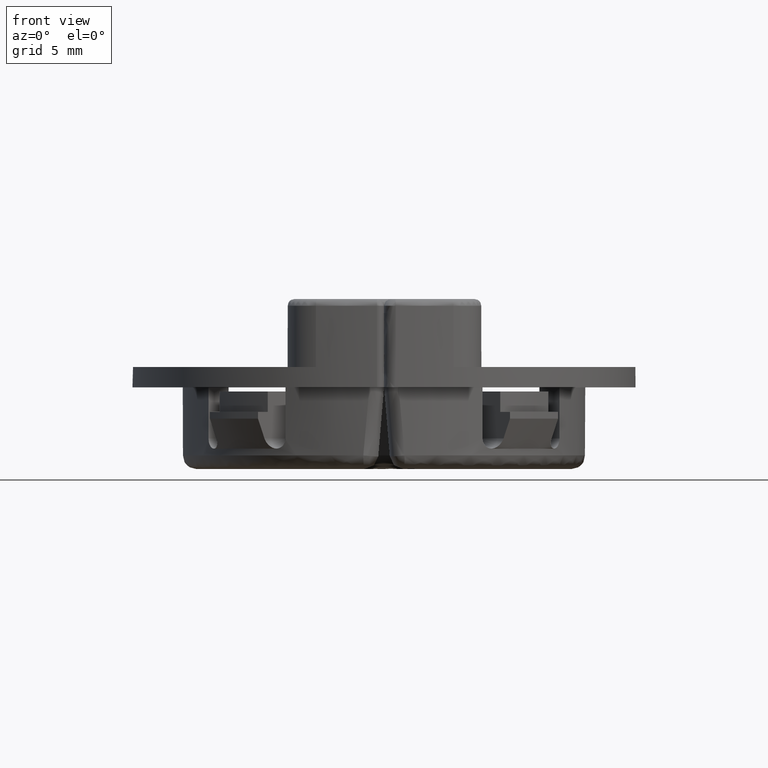
[diagram: clean part render]
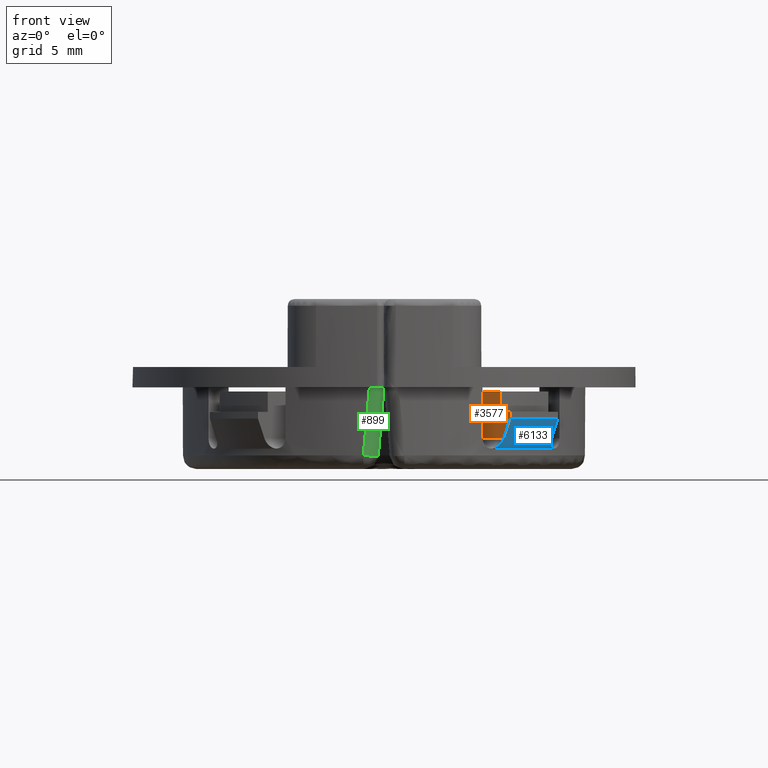
[diagram: same view with three faces highlighted in distinct colors, each labeled with its STEP entity id]
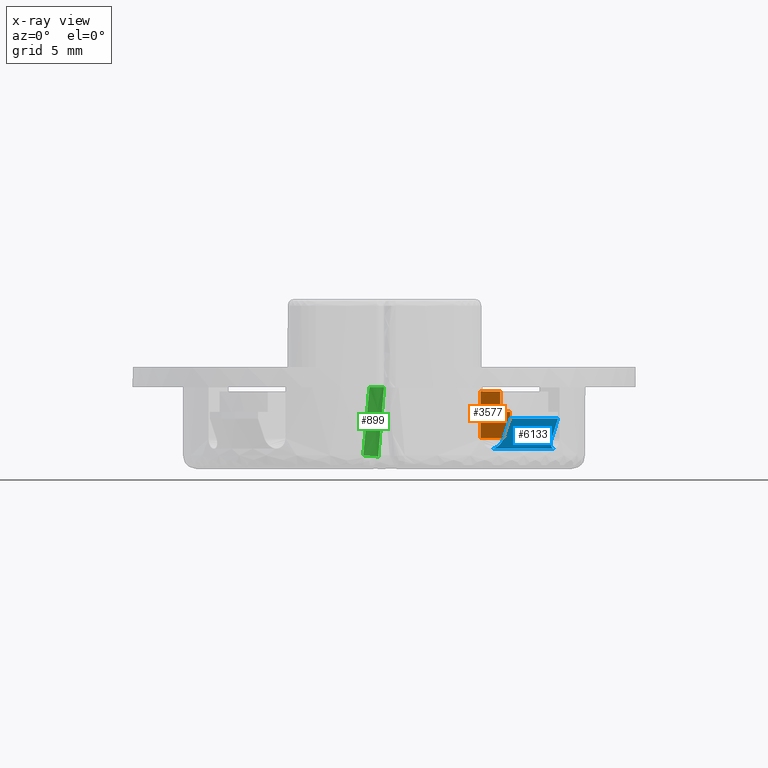
[diagram: x-ray of the same camera — body ghosted, the three highlighted faces saturated]
A machine part, front view with three faces highlighted in distinct colors.
The next image is the same camera in x-ray (body ghosted, the three faces saturated) — at least one of them is partly hidden behind the body in this view.
Their STEP definitions:

[orange] entity #3577 — the highlighted face is a freeform B-spline surface patch.
#1579=CARTESIAN_POINT('',(8.791521093563350,-12.327054999496140,2.249999999999975));
#1580=VERTEX_POINT('',#1579);
#1608=CARTESIAN_POINT('',(7.108887822341710,-10.644421728274340,2.249999999999975));
#1609=VERTEX_POINT('',#1608);
#1610=CARTESIAN_POINT('',(7.108887822341710,-10.644421728274340,2.249999999999975));
#1611=CARTESIAN_POINT('',(8.791521093563350,-12.327054999496140,2.249999999999975));
#1612=QUASI_UNIFORM_CURVE('',1,(#1610,#1611),.UNSPECIFIED.,.F.,.U.);
#1613=EDGE_CURVE('',#1609,#1580,#1612,.T.);
#2702=CARTESIAN_POINT('',(8.547028246163931,-12.082562152096560,5.700000000000000));
#2703=VERTEX_POINT('',#2702);
#2704=CARTESIAN_POINT('',(7.108887822341710,-10.644421728274340,5.700000000000000));
#2705=VERTEX_POINT('',#2704);
#2706=CARTESIAN_POINT('',(8.547028246163931,-12.082562152096560,5.700000000000000));
#2707=CARTESIAN_POINT('',(7.108887822341710,-10.644421728274340,5.700000000000000));
#2708=QUASI_UNIFORM_CURVE('',1,(#2706,#2707),.UNSPECIFIED.,.F.,.U.);
#2709=EDGE_CURVE('',#2703,#2705,#2708,.T.);
#3535=CARTESIAN_POINT('',(7.001250871902610,-10.536784777835470,2.077672519012566));
#3536=CARTESIAN_POINT('',(9.371415422935717,-12.906949328868510,2.077672519012566));
#3537=CARTESIAN_POINT('',(7.001250871902610,-10.536784777835470,5.872327326760391));
#3538=CARTESIAN_POINT('',(9.371415422935717,-12.906949328868510,5.872327326760391));
#3539=B_SPLINE_SURFACE_WITH_KNOTS('',1,1,((#3535,#3537),(#3536,#3538)),.UNSPECIFIED.,.F.,.F.,.U.,(2,2),(2,2),(0.0,3.351918853126908),(0.0,3.794654807747825),.UNSPECIFIED.);
#3540=CARTESIAN_POINT('',(7.108887822341710,-10.644421728274340,5.700000000000000));
#3541=CARTESIAN_POINT('',(7.108887822341710,-10.644421728274340,2.249999999999975));
#3542=QUASI_UNIFORM_CURVE('',1,(#3540,#3541),.UNSPECIFIED.,.F.,.U.);
#3543=EDGE_CURVE('',#2705,#1609,#3542,.T.);
#3544=ORIENTED_EDGE('',*,*,#3543,.T.);
#3545=ORIENTED_EDGE('',*,*,#1613,.T.);
#3546=CARTESIAN_POINT('',(9.263778722957678,-12.799312628890460,3.700000000000000));
#3547=VERTEX_POINT('',#3546);
#3548=CARTESIAN_POINT('',(9.263778722957664,-12.799312628890460,3.700000000000005));
#3549=CARTESIAN_POINT('',(9.106432149247105,-12.641966055179900,3.216619365488094));
#3550=CARTESIAN_POINT('',(8.949016165275930,-12.484550071208730,2.733283903218916));
#3551=CARTESIAN_POINT('',(8.791521093563334,-12.327054999496140,2.249999999999979));
#3552=B_SPLINE_CURVE_WITH_KNOTS('',3,(#3548,#3549,#3550,#3551),.UNSPECIFIED.,.F.,.U.,(4,4),(0.000000220174202,0.001596639449276),.UNSPECIFIED.);
#3553=EDGE_CURVE('',#3547,#1580,#3552,.T.);
#3554=ORIENTED_EDGE('',*,*,#3553,.F.);
#3555=CARTESIAN_POINT('',(9.263778722957678,-12.799312628890460,4.200000000000000));
#3556=VERTEX_POINT('',#3555);
#3557=CARTESIAN_POINT('',(9.263778722957678,-12.799312628890460,4.200000000000000));
#3558=CARTESIAN_POINT('',(9.263778722957678,-12.799312628890460,3.700000000000000));
#3559=QUASI_UNIFORM_CURVE('',1,(#3557,#3558),.UNSPECIFIED.,.F.,.U.);
#3560=EDGE_CURVE('',#3556,#3547,#3559,.T.);
#3561=ORIENTED_EDGE('',*,*,#3560,.F.);
#3562=CARTESIAN_POINT('',(8.547028246163931,-12.082562152096560,4.200000000000000));
#3563=VERTEX_POINT('',#3562);
#3564=CARTESIAN_POINT('',(8.547028246163931,-12.082562152096560,4.200000000000000));
#3565=CARTESIAN_POINT('',(9.263778722957678,-12.799312628890460,4.200000000000000));
#3566=QUASI_UNIFORM_CURVE('',1,(#3564,#3565),.UNSPECIFIED.,.F.,.U.);
#3567=EDGE_CURVE('',#3563,#3556,#3566,.T.);
#3568=ORIENTED_EDGE('',*,*,#3567,.F.);
#3569=CARTESIAN_POINT('',(8.547028246163931,-12.082562152096560,5.700000000000000));
#3570=CARTESIAN_POINT('',(8.547028246163931,-12.082562152096560,4.200000000000000));
#3571=QUASI_UNIFORM_CURVE('',1,(#3569,#3570),.UNSPECIFIED.,.F.,.U.);
#3572=EDGE_CURVE('',#2703,#3563,#3571,.T.);
#3573=ORIENTED_EDGE('',*,*,#3572,.F.);
#3574=ORIENTED_EDGE('',*,*,#2709,.T.);
#3575=EDGE_LOOP('',(#3544,#3545,#3554,#3561,#3568,#3573,#3574));
#3576=FACE_OUTER_BOUND('',#3575,.T.);
#3577=ADVANCED_FACE('',(#3576),#3539,.T.);

[blue] entity #6133 — the highlighted face is a freeform B-spline surface patch.
#1408=CARTESIAN_POINT('',(12.507835037453560,-7.911640959740820,1.500000000000000));
#1409=VERTEX_POINT('',#1408);
#1410=CARTESIAN_POINT('',(12.327054999497239,-8.791521093564322,2.250000000003180));
#1411=VERTEX_POINT('',#1410);
#1412=CARTESIAN_POINT('',(12.507835037453560,-7.911640959740820,1.500000000000000));
#1413=CARTESIAN_POINT('',(12.479036294509299,-7.957170063989331,1.500000000000001));
#1414=CARTESIAN_POINT('',(12.452642974046769,-8.002988106480688,1.505458508563140));
#1415=CARTESIAN_POINT('',(12.416311776386109,-8.072108436232565,1.521031509786762));
#1416=CARTESIAN_POINT('',(12.404750216467370,-8.095214990324729,1.527465191389349));
#1417=CARTESIAN_POINT('',(12.382727102171680,-8.141563995715988,1.542808581097090));
#1418=CARTESIAN_POINT('',(12.372283581384670,-8.164785565193682,1.551728146051433));
#1419=CARTESIAN_POINT('',(12.343245993839609,-8.233163394374287,1.581530554243447));
#1420=CARTESIAN_POINT('',(12.326671664153800,-8.277558332507986,1.605585033002332));
#1421=CARTESIAN_POINT('',(12.305850375292421,-8.342490173728789,1.647616838829832));
#1422=CARTESIAN_POINT('',(12.299566057054680,-8.363950874480194,1.662704621293346));
#1423=CARTESIAN_POINT('',(12.288557249397201,-8.405647318185297,1.694382358652540));
#1424=CARTESIAN_POINT('',(12.283813492043100,-8.425923999775890,1.710986578543179));
#1425=CARTESIAN_POINT('',(12.271795453838070,-8.485117300527250,1.762997761924751));
#1426=CARTESIAN_POINT('',(12.266715422866410,-8.522411058835166,1.800584560058758));
#1427=CARTESIAN_POINT('',(12.262539476479301,-8.592712603186053,1.881551657509819));
#1428=CARTESIAN_POINT('',(12.263508376103790,-8.624995464383966,1.924135487949987));
#1429=CARTESIAN_POINT('',(12.271360262189591,-8.683410919187173,2.012333078601946));
#1430=CARTESIAN_POINT('',(12.278243561539799,-8.709695361251731,2.058140232797709));
#1431=CARTESIAN_POINT('',(12.298238711537090,-8.756024731656510,2.153040360707468));
#1432=CARTESIAN_POINT('',(12.311143114189870,-8.775609208257261,2.201173341776771));
#1433=CARTESIAN_POINT('',(12.327054999497239,-8.791521093564322,2.250000000003180));
#1434=B_SPLINE_CURVE_WITH_KNOTS('',3,(#1412,#1413,#1414,#1415,#1416,#1417,#1418,#1419,#1420,#1421,#1422,#1423,#1424,#1425,#1426,#1427,#1428,#1429,#1430,#1431,#1432,#1433),.UNSPECIFIED.,.F.,.U.,(4,2,2,2,2,2,2,2,2,2,4),(0.0,0.124999999999999,0.187500000000000,0.250000000000001,0.375000000000000,0.437499999999999,0.499999999999998,0.624999999999998,0.749999999999999,0.874999999999999,1.0),.UNSPECIFIED.);
#1435=EDGE_CURVE('',#1409,#1411,#1434,.T.);
#1550=CARTESIAN_POINT('',(7.911640959740909,-12.507835037453519,1.500000000000000));
#1551=VERTEX_POINT('',#1550);
#1579=CARTESIAN_POINT('',(8.791521093563350,-12.327054999496140,2.249999999999975));
#1580=VERTEX_POINT('',#1579);
#1581=CARTESIAN_POINT('',(8.791521093563350,-12.327054999496140,2.249999999999975));
#1582=CARTESIAN_POINT('',(8.775577809879296,-12.311111715812091,2.201076993805737));
#1583=CARTESIAN_POINT('',(8.756064148070401,-12.298301282195830,2.153203178785276));
#1584=CARTESIAN_POINT('',(8.710363145417672,-12.278486908443350,2.059427289217847));
#1585=CARTESIAN_POINT('',(8.684085281625709,-12.271474034052710,2.013393531571772));
#1586=CARTESIAN_POINT('',(8.624910431072371,-12.263474047754590,1.923965242469856));
#1587=CARTESIAN_POINT('',(8.592710989077469,-12.262560390850449,1.881588790332880));
#1588=CARTESIAN_POINT('',(8.540559650665822,-12.265627148710969,1.821467325303438));
#1589=CARTESIAN_POINT('',(8.522529537104324,-12.267393815719030,1.802004550402260));
#1590=CARTESIAN_POINT('',(8.485134764611738,-12.272442568204180,1.764271028199549));
#1591=CARTESIAN_POINT('',(8.465676772085383,-12.275744378719100,1.745919703993895));
#1592=CARTESIAN_POINT('',(8.405877818670762,-12.287879674362159,1.693365316073062));
#1593=CARTESIAN_POINT('',(8.364473567819445,-12.298824669646830,1.661894355062594));
#1594=CARTESIAN_POINT('',(8.300003512204906,-12.319462786322489,1.620091227911258));
#1595=CARTESIAN_POINT('',(8.278117052212558,-12.327050344680810,1.607063240708261));
#1596=CARTESIAN_POINT('',(8.233508204516806,-12.343693872413301,1.582907223262233));
#1597=CARTESIAN_POINT('',(8.210645900799324,-12.352811104460431,1.571721994570154));
#1598=CARTESIAN_POINT('',(8.141927940299629,-12.381984922531890,1.541754398421123));
#1599=CARTESIAN_POINT('',(8.095997714390109,-12.403784453707081,1.526475676293263));
#1600=CARTESIAN_POINT('',(8.026894630897498,-12.440062867099970,1.510814650088555));
#1601=CARTESIAN_POINT('',(8.003825611905217,-12.452756768134901,1.506812257385579));
#1602=CARTESIAN_POINT('',(7.957612355135121,-12.479420227953931,1.501398269401606));
#1603=CARTESIAN_POINT('',(7.934453386082845,-12.493405383872551,1.499999999999974));
#1604=CARTESIAN_POINT('',(7.911640959740891,-12.507835037453500,1.499999999999974));
#1605=B_SPLINE_CURVE_WITH_KNOTS('',3,(#1581,#1582,#1583,#1584,#1585,#1586,#1587,#1588,#1589,#1590,#1591,#1592,#1593,#1594,#1595,#1596,#1597,#1598,#1599,#1600,#1601,#1602,#1603,#1604),.UNSPECIFIED.,.F.,.U.,(4,2,2,2,2,2,2,2,2,2,2,4),(0.0,0.125000000000001,0.250000000000001,0.375000000000002,0.437500000000003,0.500000000000004,0.625000000000007,0.687500000000006,0.750000000000005,0.875000000000002,0.937500000000001,1.0),.UNSPECIFIED.);
#1606=EDGE_CURVE('',#1580,#1551,#1605,.T.);
#3454=CARTESIAN_POINT('',(12.799312628890521,-9.263778722957598,3.700000000000000));
#3455=VERTEX_POINT('',#3454);
#3456=CARTESIAN_POINT('',(12.327054999497239,-8.791521093564320,2.250000000003181));
#3457=CARTESIAN_POINT('',(12.484550071209480,-8.949016165276564,2.733283903221050));
#3458=CARTESIAN_POINT('',(12.641966055180310,-9.106432149247388,3.216619365489160));
#3459=CARTESIAN_POINT('',(12.799312628890521,-9.263778722957596,3.700000000000002));
#3460=B_SPLINE_CURVE_WITH_KNOTS('',3,(#3456,#3457,#3458,#3459),.UNSPECIFIED.,.F.,.U.,(4,4),(0.000826085528915,0.002422504803986),.UNSPECIFIED.);
#3461=EDGE_CURVE('',#1411,#3455,#3460,.T.);
#3546=CARTESIAN_POINT('',(9.263778722957678,-12.799312628890460,3.700000000000000));
#3547=VERTEX_POINT('',#3546);
#3548=CARTESIAN_POINT('',(9.263778722957664,-12.799312628890460,3.700000000000005));
#3549=CARTESIAN_POINT('',(9.106432149247105,-12.641966055179900,3.216619365488094));
#3550=CARTESIAN_POINT('',(8.949016165275930,-12.484550071208730,2.733283903218916));
#3551=CARTESIAN_POINT('',(8.791521093563334,-12.327054999496140,2.249999999999979));
#3552=B_SPLINE_CURVE_WITH_KNOTS('',3,(#3548,#3549,#3550,#3551),.UNSPECIFIED.,.F.,.U.,(4,4),(0.000000220174202,0.001596639449276),.UNSPECIFIED.);
#3553=EDGE_CURVE('',#3547,#1580,#3552,.T.);
#6087=CARTESIAN_POINT('',(12.555156074199759,-7.789010267837891,1.445000000000000));
#6088=CARTESIAN_POINT('',(13.447931766277980,-8.342873476815690,3.756375000000001));
#6089=CARTESIAN_POINT('',(10.675892853437420,-10.818206819112151,1.445000000000000));
#6090=CARTESIAN_POINT('',(11.435037349487667,-11.587471018051538,3.756375000000001));
#6091=CARTESIAN_POINT('',(7.622077501380828,-12.657193984566362,1.444999999999999));
#6092=CARTESIAN_POINT('',(8.164070406618595,-13.557225418071249,3.756375000000001));
#6100=(BOUNDED_SURFACE()B_SPLINE_SURFACE(1,2,((#6087,#6089,#6091),(#6088,#6090,#6092)),.UNSPECIFIED.,.F.,.F.,.U.)B_SPLINE_SURFACE_WITH_KNOTS((2,2),(3,3),(0.0,2.538950035201548),(0.0,7.528512876529717),.UNSPECIFIED.)GEOMETRIC_REPRESENTATION_ITEM()RATIONAL_B_SPLINE_SURFACE(((1.0,0.970220476636503,0.996124112843234),(1.0,0.970220476636503,0.996124112843234)))REPRESENTATION_ITEM('')SURFACE());
#6101=CARTESIAN_POINT('',(12.507835037453560,-7.911640959740812,1.500000000000000));
#6102=CARTESIAN_POINT('',(10.727013760299032,-10.727013760298963,1.500000000000000));
#6103=CARTESIAN_POINT('',(7.911640959740891,-12.507835037453489,1.500000000000000));
#6111=(BOUNDED_CURVE()B_SPLINE_CURVE(2,(#6101,#6102,#6103),.UNSPECIFIED.,.F.,.U.)CURVE()GEOMETRIC_REPRESENTATION_ITEM()QUASI_UNIFORM_CURVE()RATIONAL_B_SPLINE_CURVE((1.0,0.975591212560278,1.0))REPRESENTATION_ITEM(''));
#6112=EDGE_CURVE('',#1409,#1551,#6111,.T.);
#6113=ORIENTED_EDGE('',*,*,#6112,.F.);
#6114=ORIENTED_EDGE('',*,*,#1435,.T.);
#6115=ORIENTED_EDGE('',*,*,#3461,.T.);
#6116=CARTESIAN_POINT('',(12.799312628890551,-9.263778722957616,3.700000000000000));
#6117=CARTESIAN_POINT('',(11.314824202053092,-11.314824202053012,3.700000000000001));
#6118=CARTESIAN_POINT('',(9.263778722957696,-12.799312628890471,3.700000000000000));
#6126=(BOUNDED_CURVE()B_SPLINE_CURVE(2,(#6116,#6117,#6118),.UNSPECIFIED.,.F.,.U.)CURVE()GEOMETRIC_REPRESENTATION_ITEM()QUASI_UNIFORM_CURVE()RATIONAL_B_SPLINE_CURVE((1.0,0.987402627141148,1.0))REPRESENTATION_ITEM(''));
#6127=EDGE_CURVE('',#3455,#3547,#6126,.T.);
#6128=ORIENTED_EDGE('',*,*,#6127,.T.);
#6129=ORIENTED_EDGE('',*,*,#3553,.T.);
#6130=ORIENTED_EDGE('',*,*,#1606,.T.);
#6131=EDGE_LOOP('',(#6113,#6114,#6115,#6128,#6129,#6130));
#6132=FACE_OUTER_BOUND('',#6131,.T.);
#6133=ADVANCED_FACE('',(#6132),#6100,.T.);

[green] entity #899 — the highlighted face is a freeform B-spline surface patch.
#784=CARTESIAN_POINT('',(-1.066028576239347,-14.761557610043781,6.113599158169367));
#785=CARTESIAN_POINT('',(-1.218561223970606,-14.750542230394389,4.406882505172682));
#786=CARTESIAN_POINT('',(-1.370923117821632,-14.737162459241130,2.702076449642914));
#787=CARTESIAN_POINT('',(-1.523041061389695,-14.721424724710619,0.999999999999786));
#788=CARTESIAN_POINT('',(0.002010974149856,-14.838687728107605,6.024131689799392));
#789=CARTESIAN_POINT('',(-0.140297909757794,-14.839504388649479,4.316425082902389));
#790=CARTESIAN_POINT('',(-0.282450220898232,-14.838298982455857,2.610597349151520));
#791=CARTESIAN_POINT('',(-0.424377934762674,-14.835089610126163,0.907464782848220));
#792=CARTESIAN_POINT('',(0.002546139859544,-13.764155068824600,6.030553678315640));
#793=CARTESIAN_POINT('',(-0.139680247889289,-13.753883971584100,4.323837025329369));
#794=CARTESIAN_POINT('',(-0.281747419192016,-13.741408239018771,2.619030969696373));
#795=CARTESIAN_POINT('',(-0.423587123321185,-13.726733864932880,0.916954520146059));
#803=(BOUNDED_SURFACE()B_SPLINE_SURFACE(3,2,((#784,#788,#792),(#785,#789,#793),(#786,#790,#794),(#787,#791,#795)),.UNSPECIFIED.,.F.,.F.,.U.)B_SPLINE_SURFACE_WITH_KNOTS((4,4),(3,3),(0.0,5.140663724409566),(0.0,1.0),.UNSPECIFIED.)GEOMETRIC_REPRESENTATION_ITEM()RATIONAL_B_SPLINE_SURFACE(((1.0,0.681256136698888,1.0),(1.0,0.677487121448055,1.0),(1.0,0.673691046394408,1.0),(1.0,0.669868378828283,1.0)))REPRESENTATION_ITEM('')SURFACE());
#804=CARTESIAN_POINT('',(-1.076181158008104,-14.760820916031340,6.0));
#805=VERTEX_POINT('',#804);
#806=CARTESIAN_POINT('',(-0.009999999999958,-13.904793241841739,6.0));
#807=VERTEX_POINT('',#806);
#808=CARTESIAN_POINT('',(-1.076181158008104,-14.760820916031340,6.0));
#809=CARTESIAN_POINT('',(-1.013097308501655,-14.765420230026120,6.000000000000002));
#810=CARTESIAN_POINT('',(-0.950586445446629,-14.764056089547241,6.000000000000002));
#811=CARTESIAN_POINT('',(-0.857644292628232,-14.753432482490741,6.0));
#812=CARTESIAN_POINT('',(-0.826801867996671,-14.748451972357680,6.000000000000001));
#813=CARTESIAN_POINT('',(-0.765398778194823,-14.735558492317571,6.0));
#814=CARTESIAN_POINT('',(-0.734682208877828,-14.727589976103260,5.999999999999999));
#815=CARTESIAN_POINT('',(-0.644569183179051,-14.699621740318561,6.0));
#816=CARTESIAN_POINT('',(-0.586971953409243,-14.675619691982840,5.999999999999999));
#817=CARTESIAN_POINT('',(-0.504218252601071,-14.631743978688650,6.0));
#818=CARTESIAN_POINT('',(-0.477244659534661,-14.615798096267691,6.000000000000002));
#819=CARTESIAN_POINT('',(-0.424555936274778,-14.581186113179459,6.000000000000003));
#820=CARTESIAN_POINT('',(-0.398958193902090,-14.562577287330550,6.000000000000002));
#821=CARTESIAN_POINT('',(-0.325628163546051,-14.503830691846980,6.0));
#822=CARTESIAN_POINT('',(-0.280819567700273,-14.460473520405451,6.000000000000001));
#823=CARTESIAN_POINT('',(-0.219726815539039,-14.389145512037681,5.999999999999997));
#824=CARTESIAN_POINT('',(-0.200315386402620,-14.364207202566760,6.0));
#825=CARTESIAN_POINT('',(-0.163975716560665,-14.312633233359239,5.999999999999999));
#826=CARTESIAN_POINT('',(-0.147156529199336,-14.286175814990219,6.0));
#827=CARTESIAN_POINT('',(-0.100634046702027,-14.204850267031119,5.999999999999998));
#828=CARTESIAN_POINT('',(-0.074831726221020,-14.148045773578071,5.999999999999998));
#829=CARTESIAN_POINT('',(-0.044113902589877,-14.058875116895720,5.999999999999998));
#830=CARTESIAN_POINT('',(-0.035211042701133,-14.028424726518949,5.999999999999999));
#831=CARTESIAN_POINT('',(-0.020410279833249,-13.967092113158071,5.999999999999999));
#832=CARTESIAN_POINT('',(-0.014469470953722,-13.936104583600450,5.999999999999998));
#833=CARTESIAN_POINT('',(-0.009999999999958,-13.904793241841739,6.0));
#834=B_SPLINE_CURVE_WITH_KNOTS('',3,(#808,#809,#810,#811,#812,#813,#814,#815,#816,#817,#818,#819,#820,#821,#822,#823,#824,#825,#826,#827,#828,#829,#830,#831,#832,#833),.UNSPECIFIED.,.F.,.U.,(4,2,2,2,2,2,2,2,2,2,2,2,4),(0.0,0.124999999999999,0.187499999999998,0.249999999999998,0.374999999999997,0.437499999999996,0.499999999999996,0.624999999999997,0.687499999999997,0.749999999999998,0.874999999999999,0.937499999999999,1.0),.UNSPECIFIED.);
#835=EDGE_CURVE('',#805,#807,#834,.T.);
#836=ORIENTED_EDGE('',*,*,#835,.F.);
#837=CARTESIAN_POINT('',(-1.523041061389675,-14.721424724710619,1.0));
#838=VERTEX_POINT('',#837);
#839=CARTESIAN_POINT('',(-1.523041061389677,-14.721424724710610,0.999999999999980));
#840=CARTESIAN_POINT('',(-1.299909672068633,-14.744509329249635,3.496659329160186));
#841=CARTESIAN_POINT('',(-1.076181158008104,-14.760820916031340,6.0));
#849=(BOUNDED_CURVE()B_SPLINE_CURVE(2,(#839,#840,#841),.UNSPECIFIED.,.F.,.U.)CURVE()GEOMETRIC_REPRESENTATION_ITEM()QUASI_UNIFORM_CURVE()RATIONAL_B_SPLINE_CURVE((1.0,0.999885153745210,1.0))REPRESENTATION_ITEM(''));
#850=EDGE_CURVE('',#838,#805,#849,.T.);
#851=ORIENTED_EDGE('',*,*,#850,.F.);
#852=CARTESIAN_POINT('',(-0.423587123321177,-13.726733864933021,0.916954520146163));
#853=VERTEX_POINT('',#852);
#854=CARTESIAN_POINT('',(-0.423587123321177,-13.726733864933021,0.916954520146163));
#855=CARTESIAN_POINT('',(-0.423904357652382,-14.171351222570836,0.913147708172468));
#856=CARTESIAN_POINT('',(-0.753108129640668,-14.469186331130560,0.938013584102162));
#857=CARTESIAN_POINT('',(-1.082311901628955,-14.767021439690295,0.962879460031855));
#858=CARTESIAN_POINT('',(-1.523041061389675,-14.721424724710630,1.0));
#866=(BOUNDED_CURVE()B_SPLINE_CURVE(2,(#854,#855,#856,#857,#858),.UNSPECIFIED.,.F.,.U.)B_SPLINE_CURVE_WITH_KNOTS((3,2,3),(0.0,0.500000000000000,1.0),.UNSPECIFIED.)CURVE()GEOMETRIC_REPRESENTATION_ITEM()RATIONAL_B_SPLINE_CURVE((1.0,0.913747333464874,1.0,0.913747333464874,1.0))REPRESENTATION_ITEM(''));
#867=EDGE_CURVE('',#853,#838,#866,.T.);
#868=ORIENTED_EDGE('',*,*,#867,.F.);
#869=CARTESIAN_POINT('',(-0.009999999999959,-13.763243281892519,5.880000000001560));
#870=VERTEX_POINT('',#869);
#871=CARTESIAN_POINT('',(-0.423587123321177,-13.726733864933021,0.916954520146163));
#872=CARTESIAN_POINT('',(-0.217068204026659,-13.748099785686025,3.395181551680705));
#873=CARTESIAN_POINT('',(-0.009999999999959,-13.763243281892519,5.880000000001560));
#881=(BOUNDED_CURVE()B_SPLINE_CURVE(2,(#871,#872,#873),.UNSPECIFIED.,.F.,.U.)CURVE()GEOMETRIC_REPRESENTATION_ITEM()QUASI_UNIFORM_CURVE()RATIONAL_B_SPLINE_CURVE((1.0,0.999886842967575,1.0))REPRESENTATION_ITEM(''));
#882=EDGE_CURVE('',#853,#870,#881,.T.);
#883=ORIENTED_EDGE('',*,*,#882,.T.);
#884=CARTESIAN_POINT('',(-0.009999999999958,-13.904793241841739,6.0));
#885=CARTESIAN_POINT('',(-0.009999999999958,-13.896594955648441,5.986100685056236));
#886=CARTESIAN_POINT('',(-0.009999999999958,-13.887900479162900,5.972539574018424));
#887=CARTESIAN_POINT('',(-0.009999999999958,-13.868986500147630,5.946456811547023));
#888=CARTESIAN_POINT('',(-0.009999999999958,-13.858740840013750,5.933891534776586));
#889=CARTESIAN_POINT('',(-0.009999999999958,-13.836185884712810,5.911146535901121));
#890=CARTESIAN_POINT('',(-0.009999999999958,-13.823670253305851,5.900714774096339));
#891=CARTESIAN_POINT('',(-0.009999999999958,-13.795421143328079,5.885027428381230));
#892=CARTESIAN_POINT('',(-0.009999999999958,-13.779580955977471,5.879999999991164));
#893=CARTESIAN_POINT('',(-0.009999999999959,-13.763243281892519,5.880000000001560));
#894=B_SPLINE_CURVE_WITH_KNOTS('',3,(#884,#885,#886,#887,#888,#889,#890,#891,#892,#893),.UNSPECIFIED.,.F.,.U.,(4,2,2,2,4),(0.0,0.250000000000000,0.500000000000000,0.750000000000000,1.0),.UNSPECIFIED.);
#895=EDGE_CURVE('',#807,#870,#894,.T.);
#896=ORIENTED_EDGE('',*,*,#895,.F.);
#897=EDGE_LOOP('',(#836,#851,#868,#883,#896));
#898=FACE_OUTER_BOUND('',#897,.T.);
#899=ADVANCED_FACE('',(#898),#803,.T.);